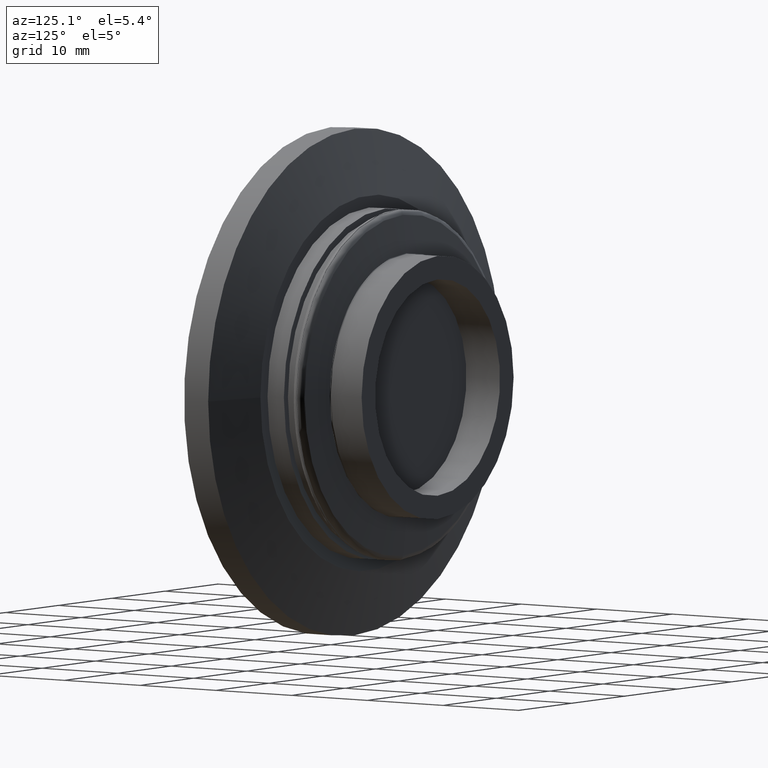
[diagram: clean part render]
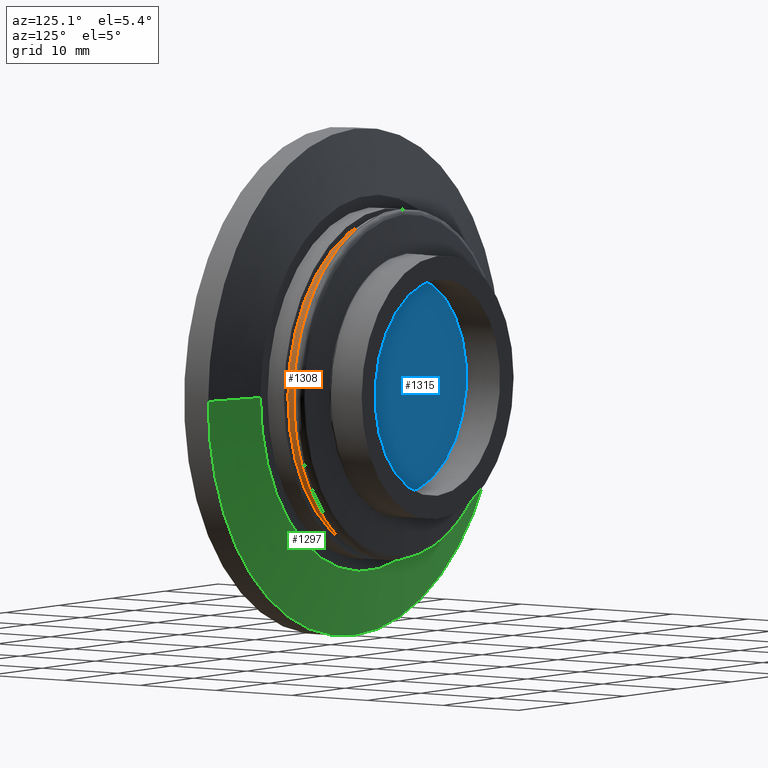
[diagram: same view with three faces highlighted in distinct colors, each labeled with its STEP entity id]
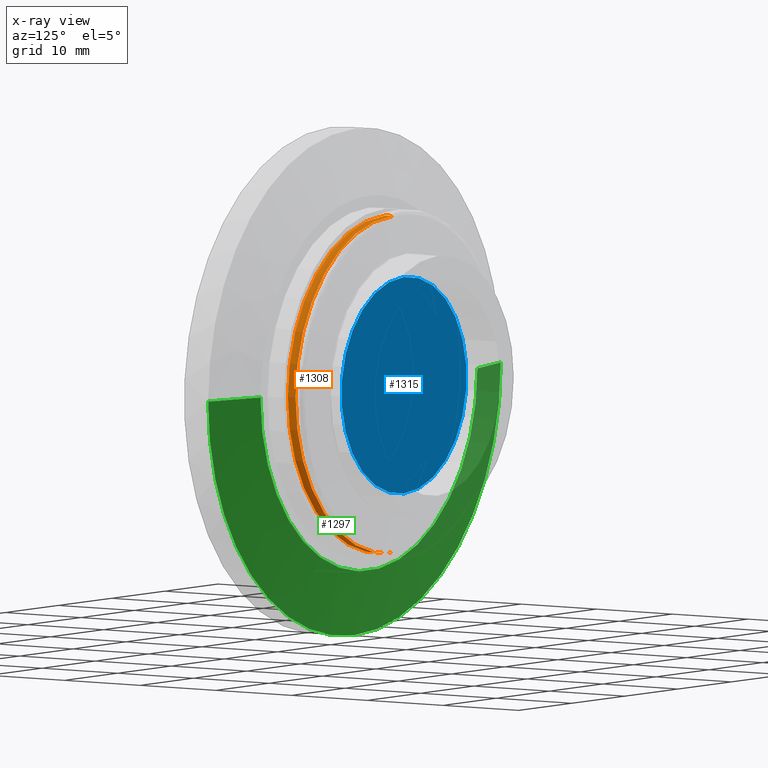
[diagram: x-ray of the same camera — body ghosted, the three highlighted faces saturated]
A machine part, auxiliary view with three faces highlighted in distinct colors.
The next image is the same camera in x-ray (body ghosted, the three faces saturated) — at least one of them is partly hidden behind the body in this view.
Their STEP definitions:

[orange] entity #1308 — the highlighted cylindrical surface (partial cylindrical patch) has radius 18.288 mm, axis along (-0, -1, -0).
#79 = CARTESIAN_POINT ( 'NONE',  ( 0.0000000000000000000, 0.0000000000000000000, 0.0000000000000000000 ) ) ;
#81 = DIRECTION ( 'NONE',  ( -0.0000000000000000000, -1.000000000000000000, -0.0000000000000000000 ) ) ;
#85 = DIRECTION ( 'NONE',  ( 0.0000000000000000000, 0.0000000000000000000, -1.000000000000000000 ) ) ;
#137 = CARTESIAN_POINT ( 'NONE',  ( 8.817456953860944500E-017, 0.2849999999999999800, 0.7200000000000000800 ) ) ;
#139 = CARTESIAN_POINT ( 'NONE',  ( 0.0000000000000000000, 0.3249999999999999600, -0.7200000000000000800 ) ) ;
#174 = CARTESIAN_POINT ( 'NONE',  ( 0.0000000000000000000, 0.2849999999999999800, -0.7200000000000000800 ) ) ;
#186 = CARTESIAN_POINT ( 'NONE',  ( 8.817456953860944500E-017, 0.3249999999999999600, 0.7200000000000000800 ) ) ;
#335 = DIRECTION ( 'NONE',  ( -0.0000000000000000000, -1.000000000000000000, -0.0000000000000000000 ) ) ;
#343 = CARTESIAN_POINT ( 'NONE',  ( 0.0000000000000000000, 0.0000000000000000000, -0.7200000000000000800 ) ) ;
#365 = AXIS2_PLACEMENT_3D ( 'NONE', #1069, #1068, #1067 ) ;
#368 = AXIS2_PLACEMENT_3D ( 'NONE', #1100, #1099, #1098 ) ;
#429 = EDGE_CURVE ( 'NONE', #1050, #785, #776, .T. ) ;
#434 = EDGE_CURVE ( 'NONE', #785, #1053, #768, .T. ) ;
#435 = EDGE_CURVE ( 'NONE', #766, #1053, #764, .T. ) ;
#438 = EDGE_CURVE ( 'NONE', #1050, #766, #759, .T. ) ;
#472 = AXIS2_PLACEMENT_3D ( 'NONE', #79, #81, #85 ) ;
#695 = CYLINDRICAL_SURFACE ( 'NONE', #472, 0.7200000000000000800 ) ;
#701 = FACE_OUTER_BOUND ( 'NONE', #990, .T. ) ;
#756 = VECTOR ( 'NONE', #335, 39.37007874015748100 ) ;
#759 = LINE ( 'NONE', #343, #756 ) ;
#763 = VECTOR ( 'NONE', #1078, 39.37007874015748100 ) ;
#764 = CIRCLE ( 'NONE', #365, 0.7200000000000000800 ) ;
#766 = VERTEX_POINT ( 'NONE', #174 ) ;
#768 = LINE ( 'NONE', #1086, #763 ) ;
#776 = CIRCLE ( 'NONE', #368, 0.7200000000000000800 ) ;
#785 = VERTEX_POINT ( 'NONE', #186 ) ;
#862 = ORIENTED_EDGE ( 'NONE', *, *, #429, .T. ) ;
#863 = ORIENTED_EDGE ( 'NONE', *, *, #434, .T. ) ;
#864 = ORIENTED_EDGE ( 'NONE', *, *, #435, .F. ) ;
#865 = ORIENTED_EDGE ( 'NONE', *, *, #438, .F. ) ;
#990 = EDGE_LOOP ( 'NONE', ( #862, #863, #864, #865 ) ) ;
#1050 = VERTEX_POINT ( 'NONE', #139 ) ;
#1053 = VERTEX_POINT ( 'NONE', #137 ) ;
#1067 = DIRECTION ( 'NONE',  ( 0.0000000000000000000, 0.0000000000000000000, -1.000000000000000000 ) ) ;
#1068 = DIRECTION ( 'NONE',  ( -0.0000000000000000000, -1.000000000000000000, -0.0000000000000000000 ) ) ;
#1069 = CARTESIAN_POINT ( 'NONE',  ( 0.0000000000000000000, 0.2849999999999999800, 0.0000000000000000000 ) ) ;
#1078 = DIRECTION ( 'NONE',  ( -0.0000000000000000000, -1.000000000000000000, -0.0000000000000000000 ) ) ;
#1086 = CARTESIAN_POINT ( 'NONE',  ( 8.817456953860944500E-017, 0.0000000000000000000, 0.7200000000000000800 ) ) ;
#1098 = DIRECTION ( 'NONE',  ( 0.0000000000000000000, 0.0000000000000000000, -1.000000000000000000 ) ) ;
#1099 = DIRECTION ( 'NONE',  ( -0.0000000000000000000, -1.000000000000000000, -0.0000000000000000000 ) ) ;
#1100 = CARTESIAN_POINT ( 'NONE',  ( 0.0000000000000000000, 0.3249999999999999600, 0.0000000000000000000 ) ) ;
#1308 = ADVANCED_FACE ( 'NONE', ( #701 ), #695, .T. ) ;

[blue] entity #1315 — the highlighted planar face has unit normal (0, 1, -0).
#23 = DIRECTION ( 'NONE',  ( 0.0000000000000000000, 3.081487911019573900E-033, 1.000000000000000000 ) ) ;
#27 = DIRECTION ( 'NONE',  ( 1.710569414459001800E-049, 1.000000000000000000, -3.081487911019573900E-033 ) ) ;
#31 = PLANE ( 'NONE',  #468 ) ;
#34 = CARTESIAN_POINT ( 'NONE',  ( 0.0000000000000000000, 0.3824251999999999700, 0.0000000000000000000 ) ) ;
#128 = CARTESIAN_POINT ( 'NONE',  ( 5.663991446056509000E-017, 0.3824251999999999700, 0.4625000000000000800 ) ) ;
#180 = CARTESIAN_POINT ( 'NONE',  ( 0.0000000000000000000, 0.3824251999999999700, -0.4625000000000000800 ) ) ;
#288 = DIRECTION ( 'NONE',  ( 0.0000000000000000000, 0.0000000000000000000, -1.000000000000000000 ) ) ;
#292 = DIRECTION ( 'NONE',  ( 0.0000000000000000000, 1.000000000000000000, 0.0000000000000000000 ) ) ;
#296 = CARTESIAN_POINT ( 'NONE',  ( 0.0000000000000000000, 0.3824251999999999700, 0.0000000000000000000 ) ) ;
#363 = AXIS2_PLACEMENT_3D ( 'NONE', #296, #292, #288 ) ;
#366 = AXIS2_PLACEMENT_3D ( 'NONE', #1084, #1082, #1080 ) ;
#432 = EDGE_CURVE ( 'NONE', #762, #1063, #772, .T. ) ;
#468 = AXIS2_PLACEMENT_3D ( 'NONE', #34, #27, #23 ) ;
#530 = EDGE_CURVE ( 'NONE', #1063, #762, #761, .T. ) ;
#688 = FACE_OUTER_BOUND ( 'NONE', #995, .T. ) ;
#761 = CIRCLE ( 'NONE', #363, 0.4625000000000000800 ) ;
#762 = VERTEX_POINT ( 'NONE', #180 ) ;
#772 = CIRCLE ( 'NONE', #366, 0.4625000000000000800 ) ;
#887 = ORIENTED_EDGE ( 'NONE', *, *, #432, .T. ) ;
#888 = ORIENTED_EDGE ( 'NONE', *, *, #530, .T. ) ;
#995 = EDGE_LOOP ( 'NONE', ( #887, #888 ) ) ;
#1063 = VERTEX_POINT ( 'NONE', #128 ) ;
#1080 = DIRECTION ( 'NONE',  ( 0.0000000000000000000, 0.0000000000000000000, -1.000000000000000000 ) ) ;
#1082 = DIRECTION ( 'NONE',  ( 0.0000000000000000000, 1.000000000000000000, 0.0000000000000000000 ) ) ;
#1084 = CARTESIAN_POINT ( 'NONE',  ( 0.0000000000000000000, 0.3824251999999999700, 0.0000000000000000000 ) ) ;
#1315 = ADVANCED_FACE ( 'NONE', ( #688 ), #31, .T. ) ;

[green] entity #1297 — the highlighted conical surface has half-angle 75 deg.
#64 = CARTESIAN_POINT ( 'NONE',  ( 0.0000000000000000000, 0.1250000000000000600, 0.0000000000000000000 ) ) ;
#70 = DIRECTION ( 'NONE',  ( -7.886397210347181000E-018, -1.000000000000000000, 0.0000000000000000000 ) ) ;
#82 = DIRECTION ( 'NONE',  ( 1.000000000000000000, -1.577279442069435900E-017, 0.0000000000000000000 ) ) ;
#132 = CARTESIAN_POINT ( 'NONE',  ( 0.8025961894323349100, 0.2000000000000000400, 0.0000000000000000000 ) ) ;
#133 = CARTESIAN_POINT ( 'NONE',  ( 0.0000000000000000000, 0.1250000000000000600, -1.082500000000000000 ) ) ;
#144 = CARTESIAN_POINT ( 'NONE',  ( -1.082500000000000000, 0.1250000000000000600, 1.325680160077009900E-016 ) ) ;
#147 = CARTESIAN_POINT ( 'NONE',  ( -0.8025961894323349100, 0.2000000000000000400, 1.154288507236590800E-016 ) ) ;
#156 = CARTESIAN_POINT ( 'NONE',  ( 1.082500000000000000, 0.1250000000000000600, 0.0000000000000000000 ) ) ;
#198 = DIRECTION ( 'NONE',  ( 0.0000000000000000000, 0.0000000000000000000, -1.000000000000000000 ) ) ;
#199 = DIRECTION ( 'NONE',  ( -0.0000000000000000000, -1.000000000000000000, -0.0000000000000000000 ) ) ;
#200 = CARTESIAN_POINT ( 'NONE',  ( 0.0000000000000000000, 0.1250000000000000600, 0.0000000000000000000 ) ) ;
#205 = DIRECTION ( 'NONE',  ( 1.000000000000000000, 0.0000000000000000000, 0.0000000000000000000 ) ) ;
#206 = DIRECTION ( 'NONE',  ( -7.886397210347181000E-018, -1.000000000000000000, 0.0000000000000000000 ) ) ;
#207 = CARTESIAN_POINT ( 'NONE',  ( 5.914797907760387300E-019, 0.2000000000000000400, 0.0000000000000000000 ) ) ;
#376 = AXIS2_PLACEMENT_3D ( 'NONE', #1187, #1186, #1182 ) ;
#412 = EDGE_CURVE ( 'NONE', #1057, #1035, #805, .T. ) ;
#414 = EDGE_CURVE ( 'NONE', #1042, #1045, #804, .T. ) ;
#416 = EDGE_CURVE ( 'NONE', #1058, #1035, #797, .T. ) ;
#444 = AXIS2_PLACEMENT_3D ( 'NONE', #64, #70, #82 ) ;
#456 = AXIS2_PLACEMENT_3D ( 'NONE', #200, #199, #198 ) ;
#462 = AXIS2_PLACEMENT_3D ( 'NONE', #207, #206, #205 ) ;
#550 = EDGE_CURVE ( 'NONE', #1042, #1058, #732, .T. ) ;
#552 = EDGE_CURVE ( 'NONE', #1045, #1057, #729, .T. ) ;
#714 = CONICAL_SURFACE ( 'NONE', #444, 1.082500000000000000, 1.308996938995746500 ) ;
#723 = FACE_OUTER_BOUND ( 'NONE', #1019, .T. ) ;
#729 = CIRCLE ( 'NONE', #456, 1.082500000000000000 ) ;
#732 = CIRCLE ( 'NONE', #462, 0.8025961894323349100 ) ;
#794 = VECTOR ( 'NONE', #1180, 39.37007874015747400 ) ;
#797 = LINE ( 'NONE', #1193, #794 ) ;
#798 = VECTOR ( 'NONE', #1188, 39.37007874015747400 ) ;
#804 = LINE ( 'NONE', #1179, #798 ) ;
#805 = CIRCLE ( 'NONE', #376, 1.082500000000000000 ) ;
#956 = ORIENTED_EDGE ( 'NONE', *, *, #414, .F. ) ;
#957 = ORIENTED_EDGE ( 'NONE', *, *, #550, .T. ) ;
#958 = ORIENTED_EDGE ( 'NONE', *, *, #416, .T. ) ;
#959 = ORIENTED_EDGE ( 'NONE', *, *, #412, .F. ) ;
#960 = ORIENTED_EDGE ( 'NONE', *, *, #552, .F. ) ;
#1019 = EDGE_LOOP ( 'NONE', ( #956, #957, #958, #959, #960 ) ) ;
#1035 = VERTEX_POINT ( 'NONE', #156 ) ;
#1042 = VERTEX_POINT ( 'NONE', #147 ) ;
#1045 = VERTEX_POINT ( 'NONE', #144 ) ;
#1057 = VERTEX_POINT ( 'NONE', #133 ) ;
#1058 = VERTEX_POINT ( 'NONE', #132 ) ;
#1179 = CARTESIAN_POINT ( 'NONE',  ( -1.082500000000000000, 0.1250000000000000600, 1.325680160077009900E-016 ) ) ;
#1180 = DIRECTION ( 'NONE',  ( 0.9659258262890682000, -0.2588190451025214600, 0.0000000000000000000 ) ) ;
#1182 = DIRECTION ( 'NONE',  ( 0.0000000000000000000, 0.0000000000000000000, -1.000000000000000000 ) ) ;
#1186 = DIRECTION ( 'NONE',  ( -0.0000000000000000000, -1.000000000000000000, -0.0000000000000000000 ) ) ;
#1187 = CARTESIAN_POINT ( 'NONE',  ( 0.0000000000000000000, 0.1250000000000000600, 0.0000000000000000000 ) ) ;
#1188 = DIRECTION ( 'NONE',  ( -0.9659258262890682000, -0.2588190451025214600, 1.182917971378669600E-016 ) ) ;
#1193 = CARTESIAN_POINT ( 'NONE',  ( 1.082500000000000000, 0.1250000000000000300, 0.0000000000000000000 ) ) ;
#1297 = ADVANCED_FACE ( 'NONE', ( #723 ), #714, .T. ) ;